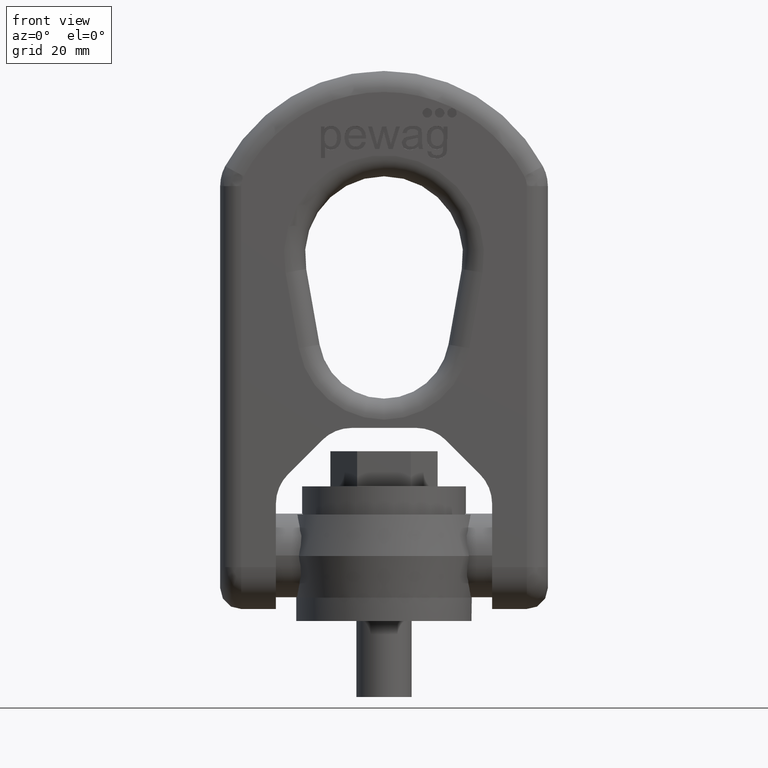
[diagram: clean part render]
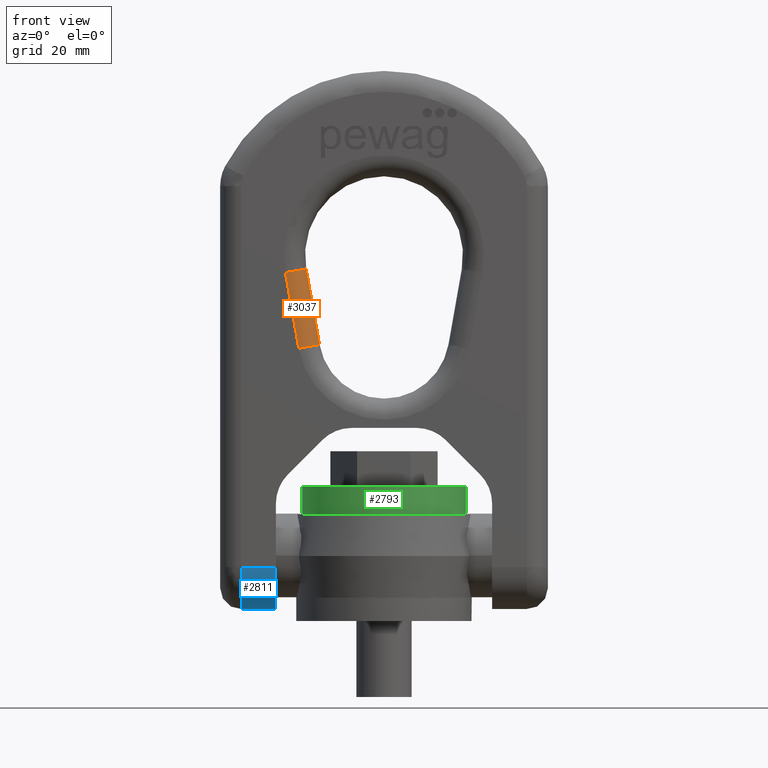
[diagram: same view with three faces highlighted in distinct colors, each labeled with its STEP entity id]
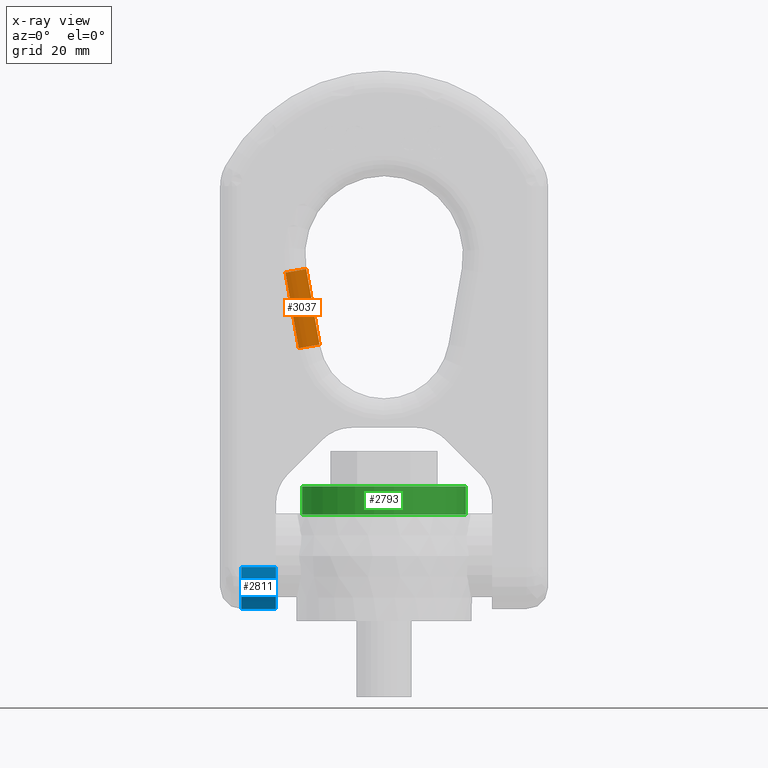
[diagram: x-ray of the same camera — body ghosted, the three highlighted faces saturated]
A machine part, front view with three faces highlighted in distinct colors.
The next image is the same camera in x-ray (body ghosted, the three faces saturated) — at least one of them is partly hidden behind the body in this view.
Their STEP definitions:

[orange] entity #3037 — the highlighted cylindrical surface (edge-blend (fillet) strip) has radius 3.6 mm, axis along (0.1736, 0, -0.9848).
#1774=LINE('',#7069,#2082);
#1859=LINE('',#7728,#2167);
#2082=VECTOR('',#6193,1.);
#2167=VECTOR('',#6330,1.);
#2662=FACE_OUTER_BOUND('',#3430,.T.);
#3037=ADVANCED_FACE('',(#2662),#3067,.T.);
#3067=CYLINDRICAL_SURFACE('',#6060,3.6);
#3430=EDGE_LOOP('',(#4685,#4686,#4687,#4688));
#4685=ORIENTED_EDGE('',*,*,#5746,.T.);
#4686=ORIENTED_EDGE('',*,*,#5353,.F.);
#4687=ORIENTED_EDGE('',*,*,#5747,.F.);
#4688=ORIENTED_EDGE('',*,*,#5176,.F.);
#4743=VERTEX_POINT('',#7070);
#4744=VERTEX_POINT('',#7071);
#4911=VERTEX_POINT('',#7722);
#4914=VERTEX_POINT('',#7727);
#5176=EDGE_CURVE('',#4743,#4744,#1774,.T.);
#5353=EDGE_CURVE('',#4914,#4911,#1859,.T.);
#5746=EDGE_CURVE('',#4743,#4911,#5824,.T.);
#5747=EDGE_CURVE('',#4744,#4914,#5825,.T.);
#5824=CIRCLE('',#6057,3.6);
#5825=CIRCLE('',#6059,3.6);
#6057=AXIS2_PLACEMENT_3D('',#9838,#6922,#6923);
#6059=AXIS2_PLACEMENT_3D('',#9840,#6926,#6927);
#6060=AXIS2_PLACEMENT_3D('',#9841,#6928,#6929);
#6193=DIRECTION('',(-0.173648177666931,0.,0.984807753012208));
#6330=DIRECTION('',(0.173648177666931,0.,-0.984807753012208));
#6922=DIRECTION('',(-0.173648177666931,0.,0.984807753012208));
#6923=DIRECTION('',(0.984807753012208,0.,0.173648177666931));
#6926=DIRECTION('',(-0.173648177666929,0.,0.984807753012208));
#6927=DIRECTION('',(0.984807753012208,0.,0.173648177666929));
#6928=DIRECTION('',(0.173648177666931,0.,-0.984807753012208));
#6929=DIRECTION('',(-0.984807753012208,0.,-0.173648177666931));
#7069=CARTESIAN_POINT('',(-16.8402125765088,-7.2,59.5306161618955));
#7070=CARTESIAN_POINT('',(-14.5638083411067,-7.2,46.6204862075592));
#7071=CARTESIAN_POINT('',(-16.8402125765088,-7.2,59.5306161618955));
#7722=CARTESIAN_POINT('',(-11.0185004302628,-3.6,47.2456196471602));
#7727=CARTESIAN_POINT('',(-13.2949046656648,-3.6,60.1557496014964));
#7728=CARTESIAN_POINT('',(-11.0185004302628,-3.6,47.2456196471602));
#9838=CARTESIAN_POINT('',(-14.5638083411067,-3.6,46.6204862075592));
#9840=CARTESIAN_POINT('',(-16.8402125765088,-3.6,59.5306161618955));
#9841=CARTESIAN_POINT('',(-16.9637198504875,-3.6,60.2310607194015));

[blue] entity #2811 — the highlighted cylindrical surface (partial cylindrical patch) has radius 7.2 mm, axis along (-1, 0, 0).
#1770=LINE('',#7054,#2078);
#1771=LINE('',#7059,#2079);
#2078=VECTOR('',#6179,1.);
#2079=VECTOR('',#6182,1.);
#2453=FACE_OUTER_BOUND('',#3171,.T.);
#2811=ADVANCED_FACE('',(#2453),#3043,.T.);
#3043=CYLINDRICAL_SURFACE('',#5866,7.19999999999997);
#3171=EDGE_LOOP('',(#3529,#3530,#3531,#3532));
#3529=ORIENTED_EDGE('',*,*,#5169,.F.);
#3530=ORIENTED_EDGE('',*,*,#5170,.T.);
#3531=ORIENTED_EDGE('',*,*,#5171,.F.);
#3532=ORIENTED_EDGE('',*,*,#5172,.T.);
#4737=VERTEX_POINT('',#7055);
#4738=VERTEX_POINT('',#7056);
#4739=VERTEX_POINT('',#7058);
#4740=VERTEX_POINT('',#7060);
#5169=EDGE_CURVE('',#4737,#4738,#1770,.T.);
#5170=EDGE_CURVE('',#4737,#4739,#5760,.T.);
#5171=EDGE_CURVE('',#4740,#4739,#1771,.T.);
#5172=EDGE_CURVE('',#4740,#4738,#5761,.T.);
#5760=CIRCLE('',#5864,7.19999999999997);
#5761=CIRCLE('',#5865,7.19999999999997);
#5864=AXIS2_PLACEMENT_3D('',#7057,#6180,#6181);
#5865=AXIS2_PLACEMENT_3D('',#7061,#6183,#6184);
#5866=AXIS2_PLACEMENT_3D('',#7062,#6185,#6186);
#6179=DIRECTION('',(1.,0.,-1.17713378726998E-15));
#6180=DIRECTION('',(1.,0.,-1.4065325480893E-16));
#6181=DIRECTION('',(0.,0.,-1.));
#6182=DIRECTION('',(-1.,2.34291072916505E-15,1.17713378726998E-15));
#6183=DIRECTION('',(-1.,0.,1.50845519650157E-16));
#6184=DIRECTION('',(0.,0.,-1.));
#6185=DIRECTION('',(-1.,1.17713378726998E-15,1.17713378726998E-15));
#6186=DIRECTION('',(9.63735264431564E-16,0.,1.));
#7054=CARTESIAN_POINT('',(28.,-7.2,9.19999999999997));
#7055=CARTESIAN_POINT('',(-24.4,-7.2,9.20000000000003));
#7056=CARTESIAN_POINT('',(-18.48,-7.19999999999995,9.2));
#7057=CARTESIAN_POINT('',(-24.4,2.87220644093874E-14,9.20000000000003));
#7058=CARTESIAN_POINT('',(-24.4,7.20000000000006,9.20000000000003));
#7059=CARTESIAN_POINT('',(28.,7.19999999999993,9.19999999999997));
#7060=CARTESIAN_POINT('',(-18.48,7.20000000000004,9.19999999999997));
#7061=CARTESIAN_POINT('',(-18.48,2.17534323887492E-14,9.20000000000002));
#7062=CARTESIAN_POINT('',(28.,-3.29597460435593E-14,9.19999999999997));

[green] entity #2793 — the highlighted cylindrical surface (bore or boss wall) has radius 14 mm, axis along (0, 0, -1).
#2793=ADVANCED_FACE('',(#3081,#3082),#3042,.T.);
#3042=CYLINDRICAL_SURFACE('',#5843,14.);
#3081=FACE_BOUND('',#3150,.T.);
#3082=FACE_BOUND('',#3151,.T.);
#3150=EDGE_LOOP('',(#3446));
#3151=EDGE_LOOP('',(#3447));
#3446=ORIENTED_EDGE('',*,*,#5124,.T.);
#3447=ORIENTED_EDGE('',*,*,#5123,.F.);
#4703=VERTEX_POINT('',#6956);
#4704=VERTEX_POINT('',#6959);
#5123=EDGE_CURVE('',#4703,#4703,#5755,.T.);
#5124=EDGE_CURVE('',#4704,#4704,#5756,.T.);
#5755=CIRCLE('',#5840,14.);
#5756=CIRCLE('',#5842,14.);
#5840=AXIS2_PLACEMENT_3D('',#6955,#6090,#6091);
#5842=AXIS2_PLACEMENT_3D('',#6958,#6094,#6095);
#5843=AXIS2_PLACEMENT_3D('',#6960,#6096,#6097);
#6090=DIRECTION('',(0.,0.,-1.));
#6091=DIRECTION('',(-1.,0.,0.));
#6094=DIRECTION('',(0.,0.,-1.));
#6095=DIRECTION('',(-1.,0.,0.));
#6096=DIRECTION('',(0.,0.,-1.));
#6097=DIRECTION('',(-1.,0.,0.));
#6955=CARTESIAN_POINT('',(0.,0.,18.2));
#6956=CARTESIAN_POINT('',(-14.,0.,18.2));
#6958=CARTESIAN_POINT('',(0.,0.,23.));
#6959=CARTESIAN_POINT('',(-14.,0.,23.));
#6960=CARTESIAN_POINT('',(0.,0.,0.));